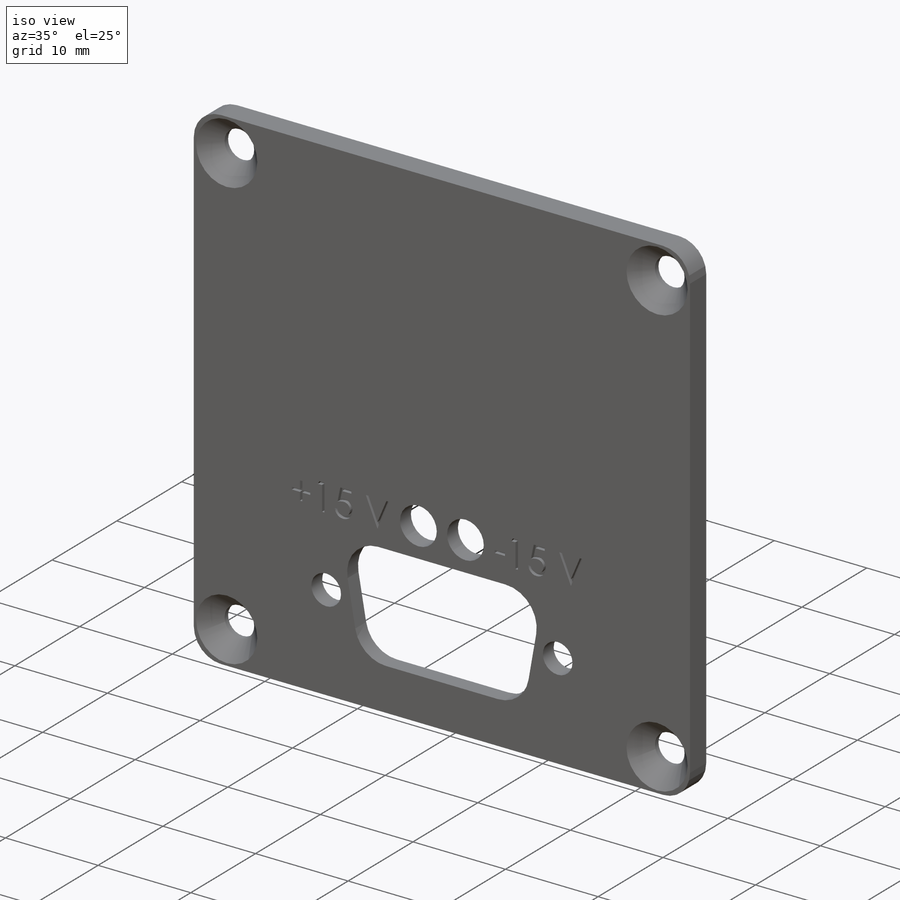
[diagram: iso view]
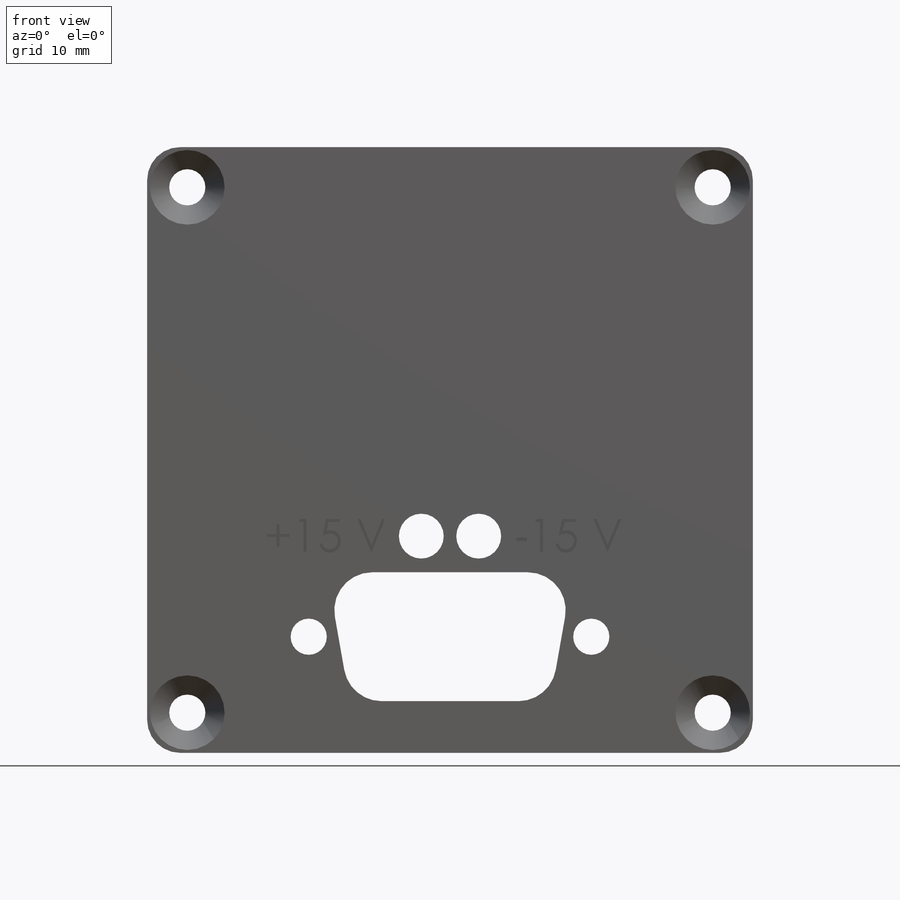
[diagram: front view]
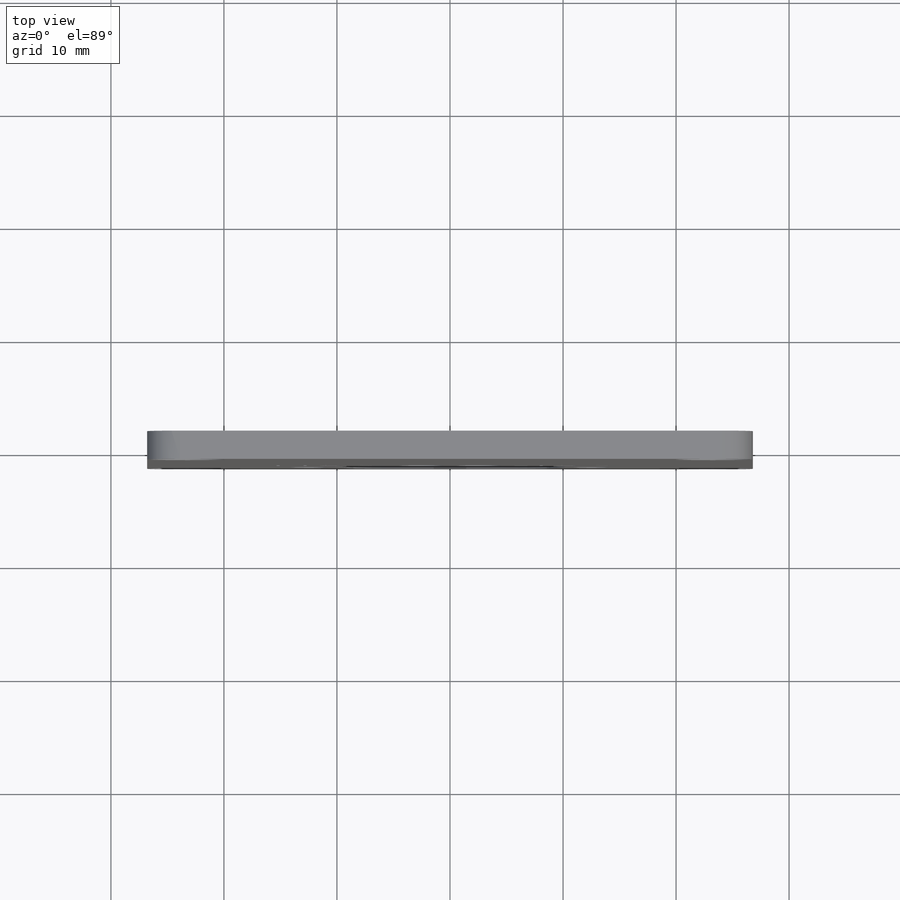
[diagram: top view]
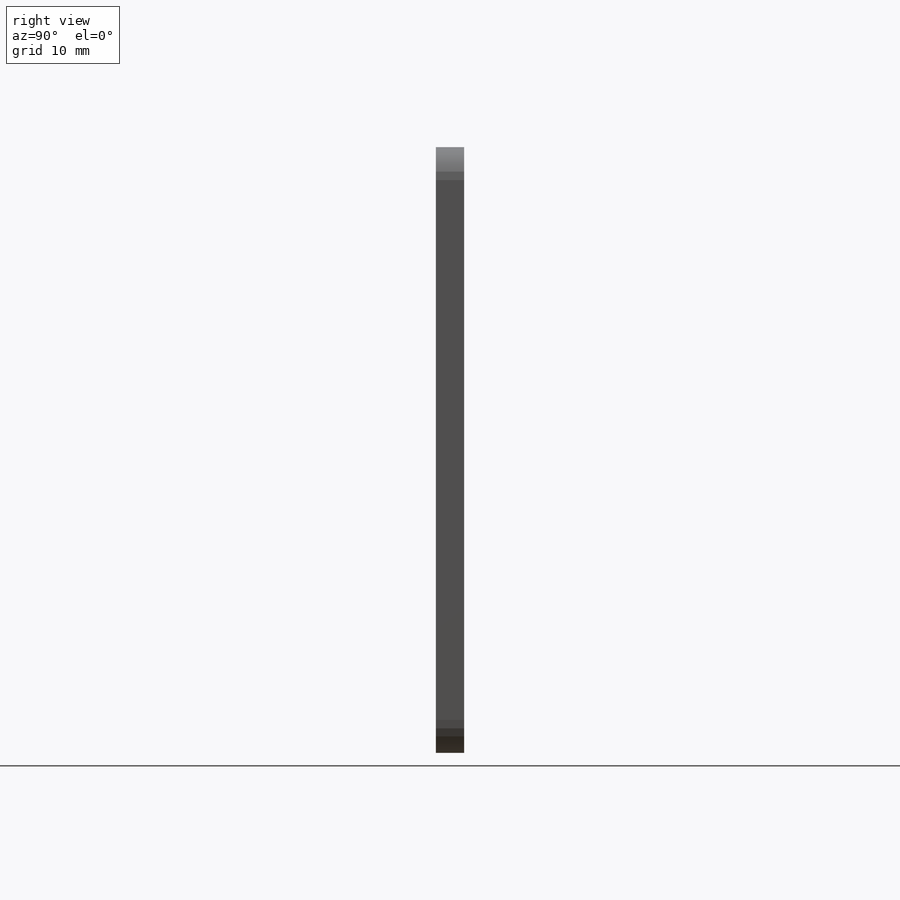
[diagram: right view]
SOLIDWORKS PART (.sldprt)
format: sldprt  version: not decoded by parser v0  size: 458,240 bytes
history: native  units: mm
features: sketch x8, cut_extrude x3, hole x2, material x1, extrude x1 + 1 further entry (+11 scaffold rows collapsed)
feature tree (27):
  scaffold x11  (default folders/planes/origin — collapsed)
  material  "6061-T6 Al"
  "Origin"  ID=392984584
  sketch  "Sketch1"  dims[c1.D1=~108.514766mm c1.D2=48.26mm c1.D3=35.56mm c2.D2=43.18mm c2.D3=53.594mm c3.D2=53.086mm]
  extrude  "Boss-Extrude1"  Depth=2.5mm
  hole  "CSK for #4 Flat Head Machine Screw1"  Diameter=3.2004mm Depth=2.5mm
  sketch  "Sketch6"  dims[c1.D1=33.02mm c1.D2=45.212mm c2.D1=46.482mm]
  sketch  "Sketch5"  dims[hole-wizard template sketch: 54 standard entries collapsed; hole parameters kept: c17.Thru Hole Dia.=3.2004mm c17.Thru Hole Depth=2.5mm c17.Near C'Sink Dia.=6.604mm c17.D4=~3.666174mm c17.Near C'Sink Angle=82.0deg]
  sketch  "Sketch7"  dims[c1.D1=6.35mm c1.D2=2.794mm c1.D5=3.175mm c2.D2=25.0mm c2.D3=~16.52016mm c2.D1=25.0mm c3.D2=16.002mm c3.D4=32.512mm c4.D2=8.001mm c4.D4=19.05mm c4.D6=32.512mm c4.D7=~8.022067mm c5.D2=11.43mm c5.D7=~12.18184mm]
  cut_extrude  "Connector Land"  Depth=1.6764mm
  hole  "#4 Clearance Hole1"  Diameter=3.2004mm Depth=1.6764mm
  sketch  "Sketch9"
  sketch  "Sketch8"  dims[hole-wizard template sketch: 59 standard entries collapsed; hole parameters kept: c18.Thru Hole Dia.=3.2004mm c18.Thru Hole Depth=1.6764mm]
  sketch  "Sketch10"  dims[c1.D2=3.2004mm c1.D3=4.7625mm c1.D5=4.7625mm c1.D8=3.3528mm c1.D11=~4.365625mm c1.D10=3.3528mm c1.D12=~3.96875mm c1.D1=6.2738mm c2.D2=~22.285271mm c2.D3=24.9936mm c2.D4=~8.933139mm c3.D4=20.0deg c3.D5=1.016mm c3.D6=11.4046mm c3.D7=1.0668mm c3.D9=~7.808094mm c3.D1=6.2738mm c4.D7=12.5476mm c4.D9=30.8102mm c4.D10=0.6604mm c4.D4=7.239mm c5.D4=20.0deg c5.D11=~4.018796mm c5.D12=80.0deg c5.D5=~2.583306mm c6.D11=~0.983106mm c6.D12=~31.98582mm c6.D10=20.4724mm c7.D12=34.544mm c7.D13=7.62mm c7.D2=5.08mm c7.D14=1.397mm c7.D15=31.75mm c7.D16=0.5461mm]
  cut_extrude  "Connector Cut-out"  [1 undecoded]
  sketch  "Sketch12"
  cut_extrude  "Cut-Extrude1"  Depth=0.381mm
decode coverage: 11 of 14 modeling features carry decoded parameters; 1 rows unclassified (native names shown)
note: ~ marks probable driven/reference dimensions
note: 1 parameter value undecoded
note: suppression state not decoded; provenance and decode notes live in map.json
